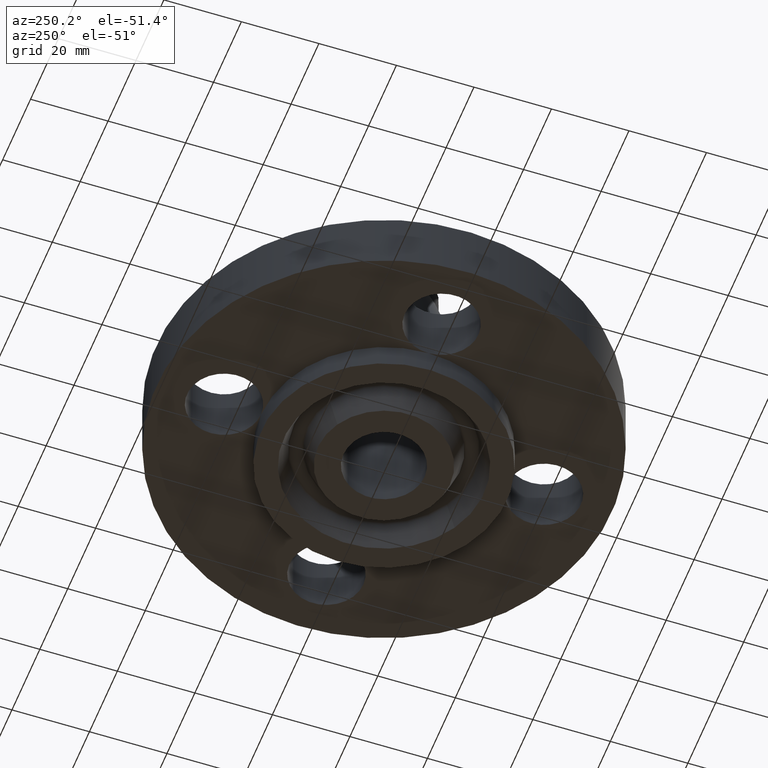
[diagram: clean part render]
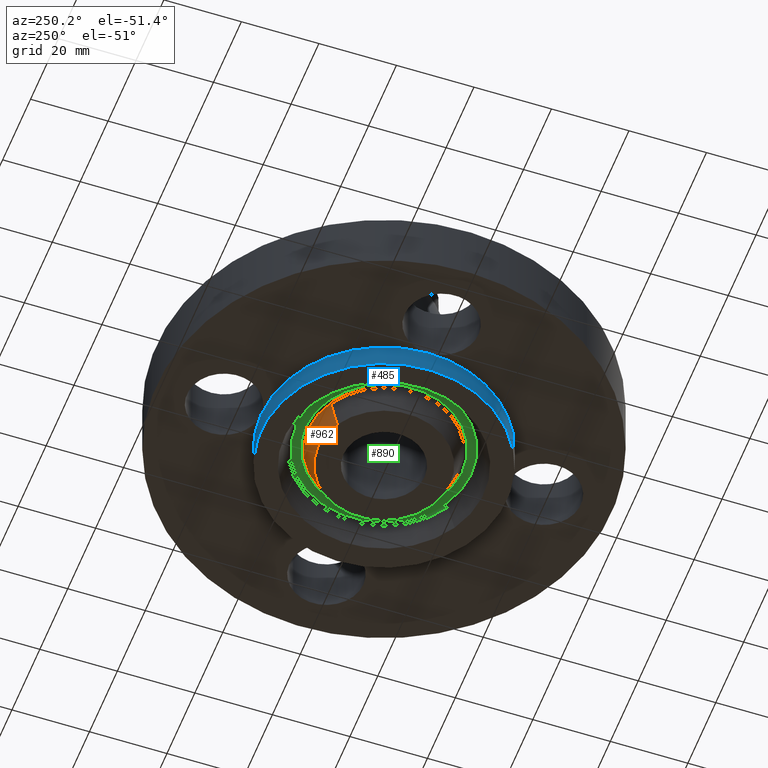
[diagram: same view with three faces highlighted in distinct colors, each labeled with its STEP entity id]
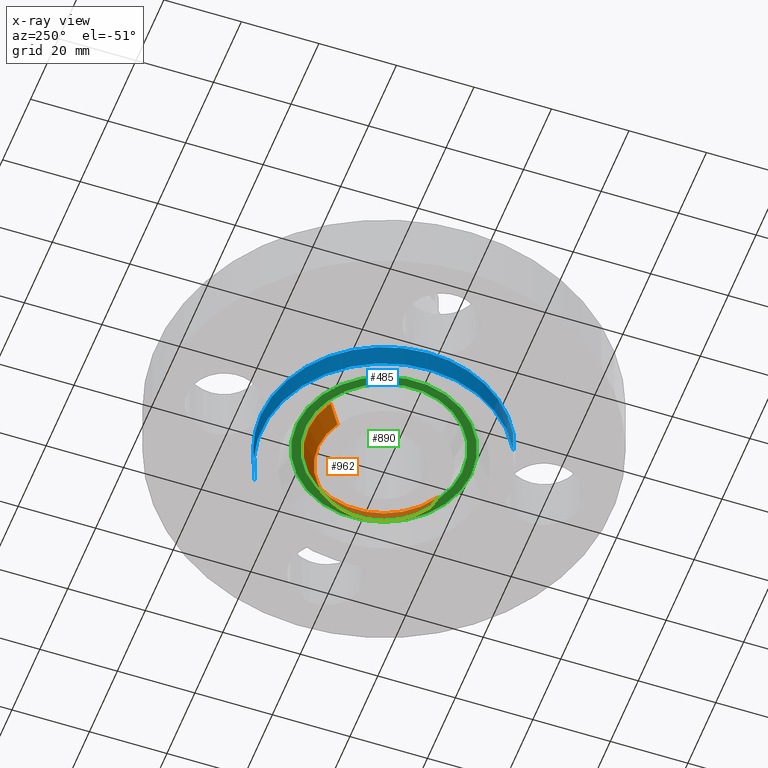
[diagram: x-ray of the same camera — body ghosted, the three highlighted faces saturated]
A machine part, auxiliary view with three faces highlighted in distinct colors.
The next image is the same camera in x-ray (body ghosted, the three faces saturated) — at least one of them is partly hidden behind the body in this view.
Their STEP definitions:

[orange] entity #962 — the highlighted conical surface has half-angle 23 deg.
#768=AXIS2_PLACEMENT_3D('Circle Axis2P3D',#766,#767,$) ;
#912=AXIS2_PLACEMENT_3D('Circle Axis2P3D',#910,#911,$) ;
#944=AXIS2_PLACEMENT_3D('Cone Axis2P3D',#941,#942,#943) ;
#766=CARTESIAN_POINT('Axis2P3D Location',(2.09805925913E-016,-6.99353086378E-017,-0.250000000001)) ;
#770=CARTESIAN_POINT('Vertex',(-0.322173961943,0.589735481593,-0.250000000001)) ;
#772=CARTESIAN_POINT('Vertex',(0.322173961943,-0.589735481593,-0.250000000001)) ;
#907=CARTESIAN_POINT('Vertex',(0.369206329292,-0.675827652547,-0.0188873350169)) ;
#910=CARTESIAN_POINT('Axis2P3D Location',(0.,0.,-0.0188873350169)) ;
#914=CARTESIAN_POINT('Vertex',(-0.369206329292,0.675827652547,-0.0188873350169)) ;
#941=CARTESIAN_POINT('Axis2P3D Location',(0.,0.,-0.310000000001)) ;
#946=CARTESIAN_POINT('Line Origine',(-0.345690145618,0.63278156707,-0.134443667509)) ;
#951=CARTESIAN_POINT('Line Origine',(0.345690145618,-0.63278156707,-0.134443667509)) ;
#767=DIRECTION('Axis2P3D Direction',(0.,0.,-0.0393700787402)) ;
#911=DIRECTION('Axis2P3D Direction',(0.,0.,0.0393700787402)) ;
#942=DIRECTION('Axis2P3D Direction',(0.,0.,0.0393700787402)) ;
#943=DIRECTION('Axis2P3D XDirection',(-0.0188750212049,0.0345504945626,0.)) ;
#947=DIRECTION('Vector Direction',(-0.00737505833565,0.0134999537303,0.0362403485611)) ;
#952=DIRECTION('Vector Direction',(0.00737505833565,-0.0134999537303,0.0362403485611)) ;
#948=VECTOR('Line Direction',#947,0.0393700787402) ;
#953=VECTOR('Line Direction',#952,0.0393700787402) ;
#957=ORIENTED_EDGE('',*,*,#950,.F.) ;
#958=ORIENTED_EDGE('',*,*,#916,.F.) ;
#959=ORIENTED_EDGE('',*,*,#955,.T.) ;
#960=ORIENTED_EDGE('',*,*,#774,.F.) ;
#962=ADVANCED_FACE('PartBody',(#961),#945,.T.) ;
#769=CIRCLE('generated circle',#768,0.672000000003) ;
#913=CIRCLE('generated circle',#912,0.770101505996) ;
#945=CONICAL_SURFACE('Cone',#944,0.64653151103,0.401425727959) ;
#774=EDGE_CURVE('',#771,#773,#769,.T.) ;
#916=EDGE_CURVE('',#908,#915,#913,.T.) ;
#950=EDGE_CURVE('',#915,#771,#949,.F.) ;
#955=EDGE_CURVE('',#908,#773,#954,.F.) ;
#956=EDGE_LOOP('',(#957,#958,#959,#960)) ;
#961=FACE_OUTER_BOUND('',#956,.T.) ;
#949=LINE('Line',#946,#948) ;
#954=LINE('Line',#951,#953) ;
#771=VERTEX_POINT('',#770) ;
#773=VERTEX_POINT('',#772) ;
#908=VERTEX_POINT('',#907) ;
#915=VERTEX_POINT('',#914) ;

[blue] entity #485 — the highlighted cylindrical surface (partial cylindrical patch) has radius 31.75 mm, axis along (0, 0, -1).
#435=AXIS2_PLACEMENT_3D('Cylinder Axis2P3D',#432,#433,#434) ;
#439=AXIS2_PLACEMENT_3D('Circle Axis2P3D',#437,#438,$) ;
#455=AXIS2_PLACEMENT_3D('Circle Axis2P3D',#453,#454,$) ;
#462=AXIS2_PLACEMENT_3D('Circle Axis2P3D',#460,#461,$) ;
#467=AXIS2_PLACEMENT_3D('Circle Axis2P3D',#465,#466,$) ;
#79=CARTESIAN_POINT('Vertex',(3.90510912389E-015,1.25000000001,1.39870617276E-016)) ;
#432=CARTESIAN_POINT('Axis2P3D Location',(0.,0.,1.)) ;
#437=CARTESIAN_POINT('Axis2P3D Location',(0.,0.,-0.250000000001)) ;
#441=CARTESIAN_POINT('Vertex',(-0.599281923258,-1.09697820237,-0.250000000001)) ;
#443=CARTESIAN_POINT('Vertex',(0.599281923258,1.09697820237,-0.250000000001)) ;
#446=CARTESIAN_POINT('Line Origine',(-0.599281923258,-1.09697820237,-0.125)) ;
#450=CARTESIAN_POINT('Vertex',(-0.599281923258,-1.09697820237,1.39870617276E-016)) ;
#453=CARTESIAN_POINT('Axis2P3D Location',(0.,0.,1.39870617276E-016)) ;
#457=CARTESIAN_POINT('Vertex',(-1.25000000001,-1.39870617276E-016,0.)) ;
#460=CARTESIAN_POINT('Axis2P3D Location',(0.,0.,1.39870617276E-016)) ;
#465=CARTESIAN_POINT('Axis2P3D Location',(0.,0.,1.39870617276E-016)) ;
#469=CARTESIAN_POINT('Vertex',(0.599281923258,1.09697820237,1.39870617276E-016)) ;
#472=CARTESIAN_POINT('Line Origine',(0.599281923258,1.09697820237,-0.125)) ;
#433=DIRECTION('Axis2P3D Direction',(0.,0.,-0.0393700787402)) ;
#434=DIRECTION('Axis2P3D XDirection',(0.0188750212049,0.0345504945626,0.)) ;
#438=DIRECTION('Axis2P3D Direction',(0.,0.,-0.0393700787402)) ;
#447=DIRECTION('Vector Direction',(0.,0.,-0.0393700787402)) ;
#454=DIRECTION('Axis2P3D Direction',(0.,0.,-0.0393700787402)) ;
#461=DIRECTION('Axis2P3D Direction',(0.,0.,-0.0393700787402)) ;
#466=DIRECTION('Axis2P3D Direction',(0.,0.,-0.0393700787402)) ;
#473=DIRECTION('Vector Direction',(0.,0.,-0.0393700787402)) ;
#448=VECTOR('Line Direction',#447,0.0393700787402) ;
#474=VECTOR('Line Direction',#473,0.0393700787402) ;
#478=ORIENTED_EDGE('',*,*,#445,.F.) ;
#479=ORIENTED_EDGE('',*,*,#452,.T.) ;
#480=ORIENTED_EDGE('',*,*,#459,.T.) ;
#481=ORIENTED_EDGE('',*,*,#464,.T.) ;
#482=ORIENTED_EDGE('',*,*,#471,.T.) ;
#483=ORIENTED_EDGE('',*,*,#476,.F.) ;
#485=ADVANCED_FACE('PartBody',(#484),#436,.T.) ;
#440=CIRCLE('generated circle',#439,1.25000000001) ;
#456=CIRCLE('generated circle',#455,1.25000000001) ;
#463=CIRCLE('generated circle',#462,1.25000000001) ;
#468=CIRCLE('generated circle',#467,1.25000000001) ;
#436=CYLINDRICAL_SURFACE('generated cylinder',#435,1.25000000001) ;
#445=EDGE_CURVE('',#442,#444,#440,.T.) ;
#452=EDGE_CURVE('',#442,#451,#449,.F.) ;
#459=EDGE_CURVE('',#451,#458,#456,.T.) ;
#464=EDGE_CURVE('',#458,#80,#463,.T.) ;
#471=EDGE_CURVE('',#80,#470,#468,.T.) ;
#476=EDGE_CURVE('',#444,#470,#475,.F.) ;
#477=EDGE_LOOP('',(#478,#479,#480,#481,#482,#483)) ;
#484=FACE_OUTER_BOUND('',#477,.T.) ;
#449=LINE('Line',#446,#448) ;
#475=LINE('Line',#472,#474) ;
#80=VERTEX_POINT('',#79) ;
#442=VERTEX_POINT('',#441) ;
#444=VERTEX_POINT('',#443) ;
#451=VERTEX_POINT('',#450) ;
#458=VERTEX_POINT('',#457) ;
#470=VERTEX_POINT('',#469) ;

[green] entity #890 — the highlighted planar face has unit normal (0, 0, -1).
#522=AXIS2_PLACEMENT_3D('Plane Axis2P3D',#519,#520,#521) ;
#812=AXIS2_PLACEMENT_3D('Circle Axis2P3D',#810,#811,$) ;
#858=AXIS2_PLACEMENT_3D('Circle Axis2P3D',#856,#857,$) ;
#874=AXIS2_PLACEMENT_3D('Circle Axis2P3D',#872,#873,$) ;
#883=AXIS2_PLACEMENT_3D('Circle Axis2P3D',#881,#882,$) ;
#519=CARTESIAN_POINT('Axis2P3D Location',(0.,1.25000000001,0.)) ;
#807=CARTESIAN_POINT('Vertex',(-0.426383260285,0.780489322696,-2.18547839493E-017)) ;
#810=CARTESIAN_POINT('Axis2P3D Location',(0.,0.,-2.18547839493E-017)) ;
#814=CARTESIAN_POINT('Vertex',(0.426383260285,-0.780489322696,-2.18547839493E-017)) ;
#856=CARTESIAN_POINT('Axis2P3D Location',(0.,0.,-2.18547839493E-017)) ;
#872=CARTESIAN_POINT('Axis2P3D Location',(0.,0.,0.)) ;
#876=CARTESIAN_POINT('Vertex',(0.382887048882,-0.700870041781,3.49676543189E-017)) ;
#878=CARTESIAN_POINT('Vertex',(-0.382887048882,0.700870041781,3.49676543189E-017)) ;
#881=CARTESIAN_POINT('Axis2P3D Location',(0.,0.,0.)) ;
#520=DIRECTION('Axis2P3D Direction',(0.,0.,-0.0393700787402)) ;
#521=DIRECTION('Axis2P3D XDirection',(0.0393700787402,0.,0.)) ;
#811=DIRECTION('Axis2P3D Direction',(0.,0.,0.0393700787402)) ;
#857=DIRECTION('Axis2P3D Direction',(0.,0.,0.0393700787402)) ;
#873=DIRECTION('Axis2P3D Direction',(0.,0.,-0.0393700787402)) ;
#882=DIRECTION('Axis2P3D Direction',(0.,0.,-0.0393700787402)) ;
#869=ORIENTED_EDGE('',*,*,#816,.F.) ;
#870=ORIENTED_EDGE('',*,*,#860,.F.) ;
#887=ORIENTED_EDGE('',*,*,#880,.T.) ;
#888=ORIENTED_EDGE('',*,*,#885,.T.) ;
#889=FACE_BOUND('',#886,.T.) ;
#890=ADVANCED_FACE('PartBody',(#871,#889),#523,.T.) ;
#813=CIRCLE('generated circle',#812,0.889362843554) ;
#859=CIRCLE('generated circle',#858,0.889362843554) ;
#875=CIRCLE('generated circle',#874,0.798637156453) ;
#884=CIRCLE('generated circle',#883,0.798637156453) ;
#816=EDGE_CURVE('',#808,#815,#813,.T.) ;
#860=EDGE_CURVE('',#815,#808,#859,.T.) ;
#880=EDGE_CURVE('',#877,#879,#875,.F.) ;
#885=EDGE_CURVE('',#879,#877,#884,.F.) ;
#868=EDGE_LOOP('',(#869,#870)) ;
#886=EDGE_LOOP('',(#887,#888)) ;
#871=FACE_OUTER_BOUND('',#868,.T.) ;
#523=PLANE('',#522) ;
#808=VERTEX_POINT('',#807) ;
#815=VERTEX_POINT('',#814) ;
#877=VERTEX_POINT('',#876) ;
#879=VERTEX_POINT('',#878) ;